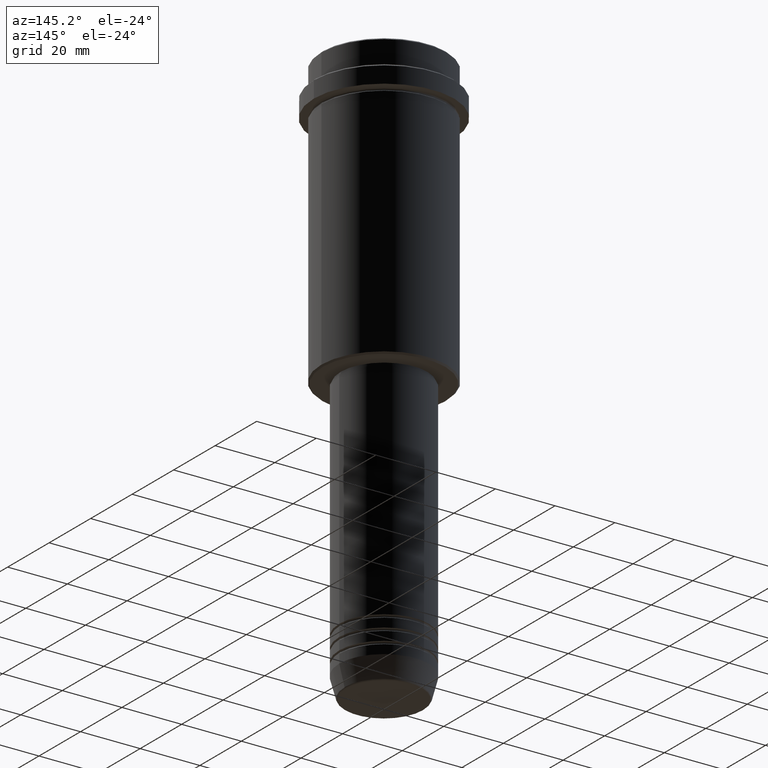
[diagram: clean part render]
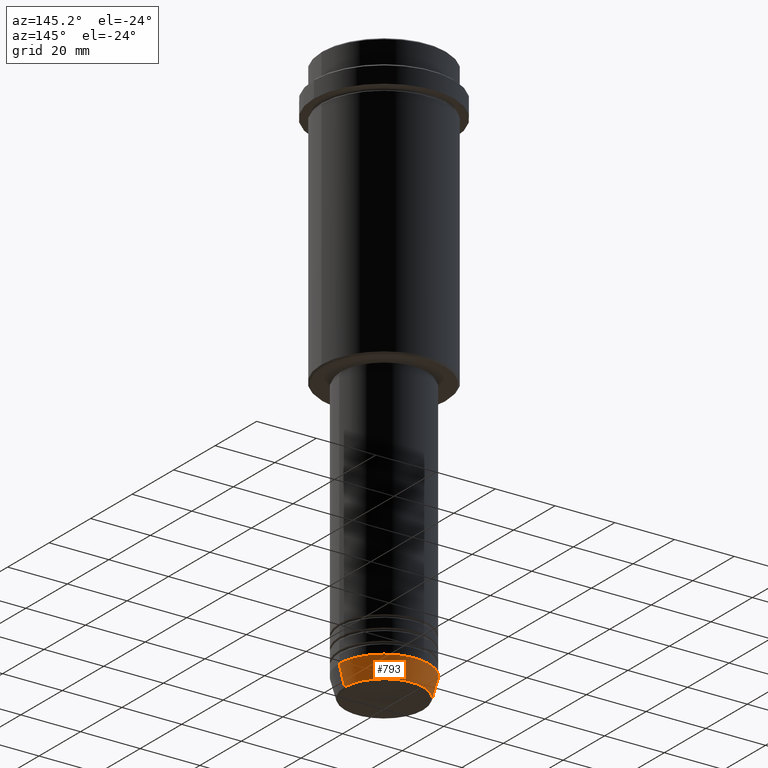
[diagram: same view with one face highlighted and labeled with its STEP entity id]
A machine part, auxiliary view. The second image highlights one B-rep face of the part: STEP entity #793.
In plain terms, the highlighted conical surface has half-angle 15 deg.
Its self-contained STEP definition (entity closure, byte-faithful):
#20 = CARTESIAN_POINT ( 'NONE',  ( 0.000000000000000000, 0.000000000000000000, -183.0000000000000000 ) ) ;
#23 = EDGE_CURVE ( 'NONE', #1393, #132, #743, .T. ) ;
#75 = DIRECTION ( 'NONE',  ( 1.000000000000000000, 0.000000000000000000, 0.000000000000000000 ) ) ;
#84 = ORIENTED_EDGE ( 'NONE', *, *, #23, .T. ) ;
#125 = EDGE_CURVE ( 'NONE', #160, #132, #801, .T. ) ;
#132 = VERTEX_POINT ( 'NONE', #894 ) ;
#135 = CARTESIAN_POINT ( 'NONE',  ( 15.00000000000000000, 0.000000000000000000, -183.0000000000000000 ) ) ;
#160 = VERTEX_POINT ( 'NONE', #135 ) ;
#259 = DIRECTION ( 'NONE',  ( 0.2588190451025213501, 0.000000000000000000, 0.9659258262890680902 ) ) ;
#331 = FACE_OUTER_BOUND ( 'NONE', #1252, .T. ) ;
#451 = AXIS2_PLACEMENT_3D ( 'NONE', #1183, #972, #75 ) ;
#463 = DIRECTION ( 'NONE',  ( -0.000000000000000000, -0.000000000000000000, 1.000000000000000000 ) ) ;
#520 = ORIENTED_EDGE ( 'NONE', *, *, #125, .F. ) ;
#542 = VECTOR ( 'NONE', #259, 1000.000000000000000 ) ;
#553 = EDGE_CURVE ( 'NONE', #586, #160, #1027, .T. ) ;
#586 = VERTEX_POINT ( 'NONE', #1127 ) ;
#702 = VECTOR ( 'NONE', #1158, 1000.000000000000000 ) ;
#743 = LINE ( 'NONE', #1035, #702 ) ;
#778 = ORIENTED_EDGE ( 'NONE', *, *, #553, .F. ) ;
#793 = ADVANCED_FACE ( 'NONE', ( #331 ), #1199, .T. ) ;
#801 = CIRCLE ( 'NONE', #1041, 15.00000000000000000 ) ;
#807 = DIRECTION ( 'NONE',  ( 1.000000000000000000, 0.000000000000000000, 0.000000000000000000 ) ) ;
#812 = CARTESIAN_POINT ( 'NONE',  ( 15.00000000000000000, 0.000000000000000000, -183.0000000000000000 ) ) ;
#843 = CIRCLE ( 'NONE', #1290, 13.22365507213719482 ) ;
#894 = CARTESIAN_POINT ( 'NONE',  ( -15.00000000000000000, 1.836970198721029589E-15, -183.0000000000000000 ) ) ;
#934 = CARTESIAN_POINT ( 'NONE',  ( -13.22365507213719660, 1.728200442216588780E-15, -189.6294095225512422 ) ) ;
#972 = DIRECTION ( 'NONE',  ( -0.000000000000000000, -0.000000000000000000, 1.000000000000000000 ) ) ;
#994 = EDGE_CURVE ( 'NONE', #586, #1393, #843, .T. ) ;
#1003 = ORIENTED_EDGE ( 'NONE', *, *, #994, .T. ) ;
#1026 = CARTESIAN_POINT ( 'NONE',  ( 0.000000000000000000, 0.000000000000000000, -189.6294095225512422 ) ) ;
#1027 = LINE ( 'NONE', #812, #542 ) ;
#1035 = CARTESIAN_POINT ( 'NONE',  ( -15.00000000000000000, 1.836970198721029589E-15, -183.0000000000000000 ) ) ;
#1041 = AXIS2_PLACEMENT_3D ( 'NONE', #20, #463, #807 ) ;
#1127 = CARTESIAN_POINT ( 'NONE',  ( 13.22365507213719482, 0.000000000000000000, -189.6294095225512422 ) ) ;
#1144 = DIRECTION ( 'NONE',  ( -0.000000000000000000, -0.000000000000000000, 1.000000000000000000 ) ) ;
#1158 = DIRECTION ( 'NONE',  ( -0.2588190451025213501, 3.169619151431772337E-17, 0.9659258262890680902 ) ) ;
#1183 = CARTESIAN_POINT ( 'NONE',  ( 0.000000000000000000, 0.000000000000000000, -183.0000000000000000 ) ) ;
#1199 = CONICAL_SURFACE ( 'NONE', #451, 15.00000000000000000, 0.2617993877991500740 ) ;
#1251 = DIRECTION ( 'NONE',  ( 1.000000000000000000, 0.000000000000000000, 0.000000000000000000 ) ) ;
#1252 = EDGE_LOOP ( 'NONE', ( #1003, #84, #520, #778 ) ) ;
#1290 = AXIS2_PLACEMENT_3D ( 'NONE', #1026, #1144, #1251 ) ;
#1393 = VERTEX_POINT ( 'NONE', #934 ) ;